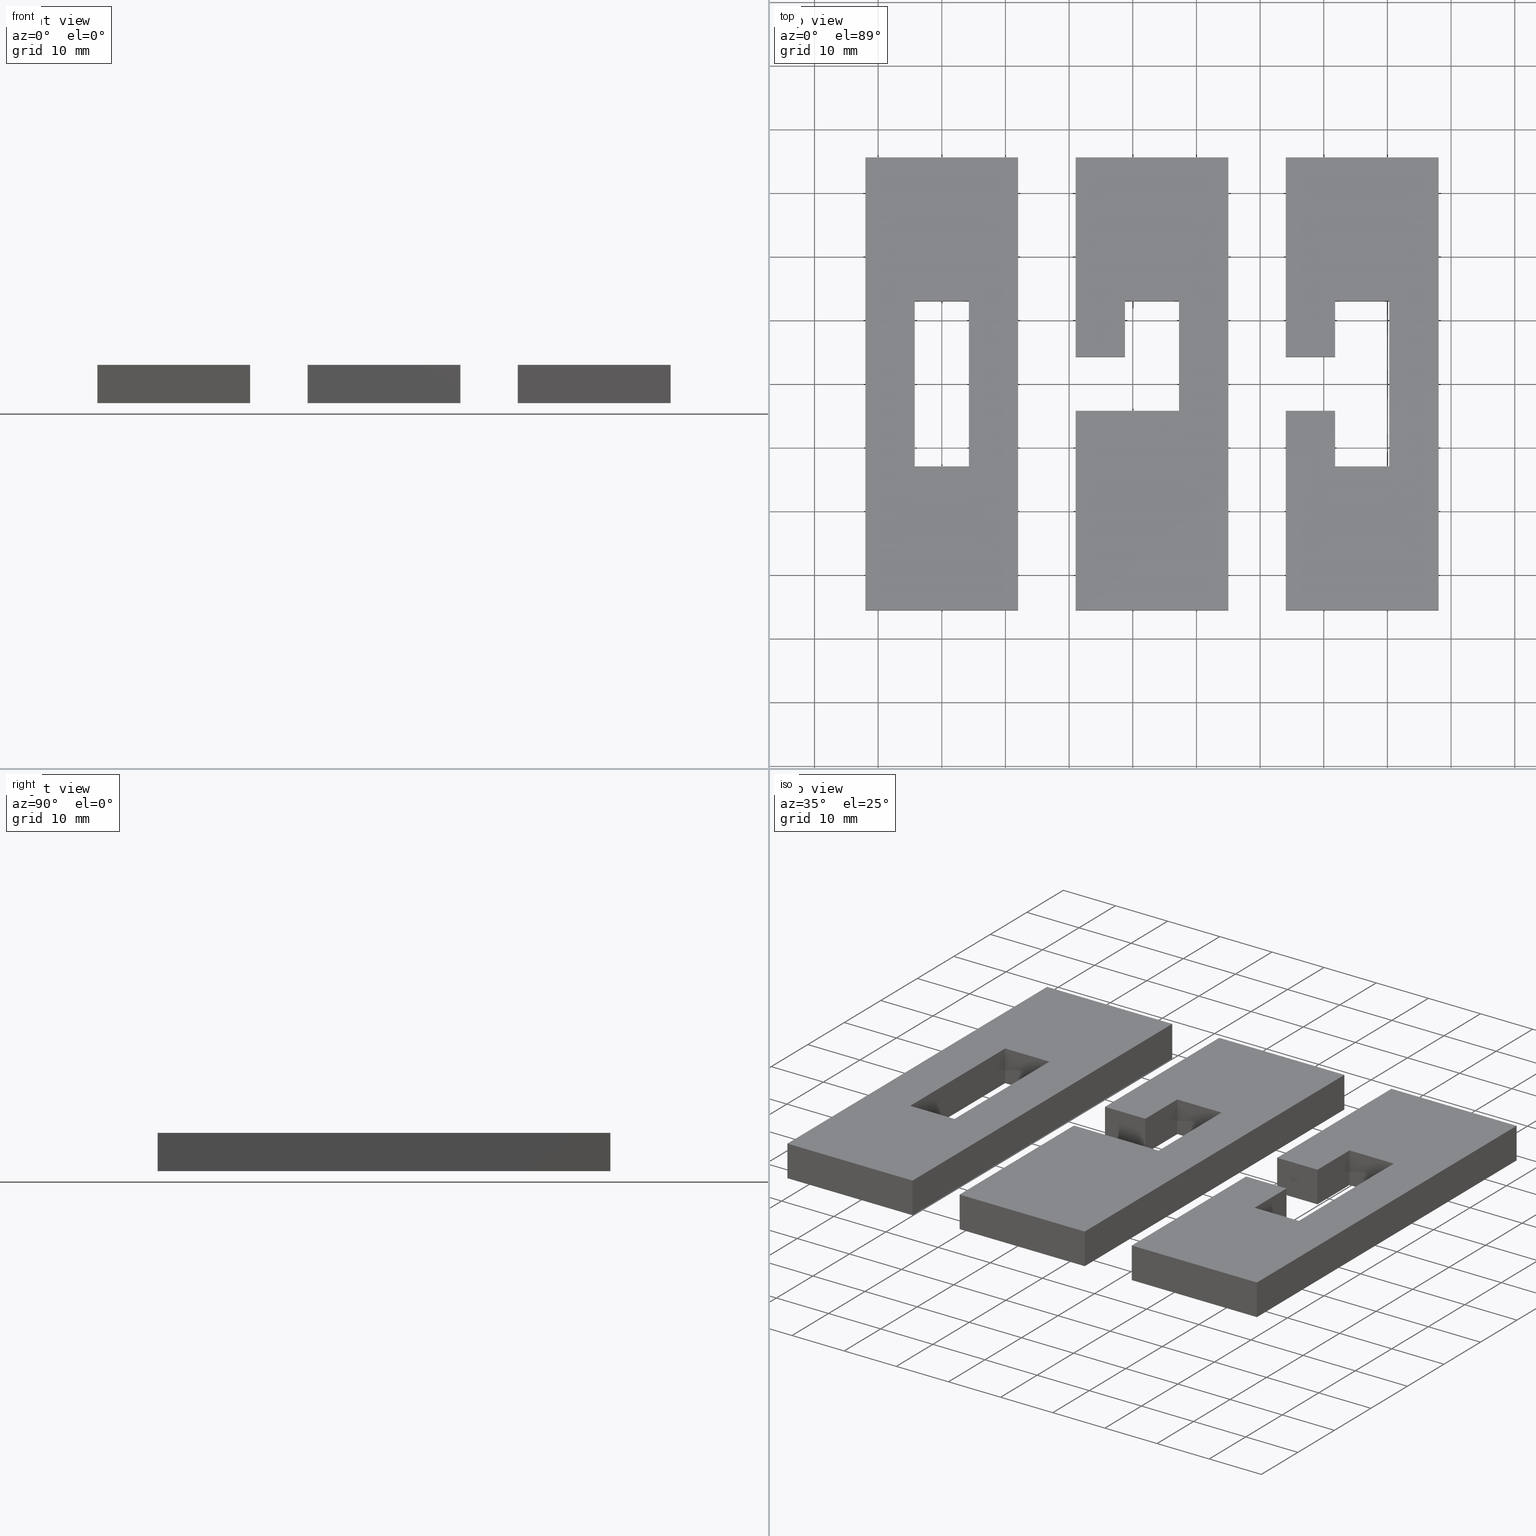
[diagram: canonical four-view strip — front | top / right | iso, engineering-drawing reading convention]
A machine part, canonical four-view strip (front | top / right | iso — engineering-drawing reading convention). The complete STEP part file that produces these views, byte-faithful:
ISO-10303-21;
HEADER;
/* Generated by software containing ST-Developer
 * from STEP Tools, Inc. (www.steptools.com) 
 */
/* OPTION: using custom renumber hook */

FILE_DESCRIPTION(
/* description */ ('STEP AP242',
'CAx-IF Rec.Pracs.---Representation and Presentation of Product Manufa
cturing Information (PMI)---4.0---2014-10-13',
'CAx-IF Rec.Pracs.---3D Tessellated Geometry---0.4---2014-09-14','2;1'),

/* implementation_level */ '2;1');

FILE_NAME(
/* name */ '6606a82485df6b6f88061250',
/* time_stamp */ '2024-03-29T11:38:12Z',
/* author */ (''),
/* organization */ (''),
/* preprocessor_version */ 'ST-DEVELOPER v19.4',
/* originating_system */ '  ',
/* authorisation */ '  ');

FILE_SCHEMA (('AP242_MANAGED_MODEL_BASED_3D_ENGINEERING_MIM_LF { 1 0 10303 442 1 1 4 }'));
ENDSEC;

DATA;
#10=SHAPE_REPRESENTATION_RELATIONSHIP('','',#705,#13);
#11=SHAPE_REPRESENTATION_RELATIONSHIP('','',#706,#14);
#12=SHAPE_REPRESENTATION_RELATIONSHIP('','',#707,#15);
#13=ADVANCED_BREP_SHAPE_REPRESENTATION('',(#699),#1107);
#14=ADVANCED_BREP_SHAPE_REPRESENTATION('',(#700),#1108);
#15=ADVANCED_BREP_SHAPE_REPRESENTATION('',(#701),#1109);
#16=ORIENTED_EDGE('',*,*,#196,.F.);
#17=ORIENTED_EDGE('',*,*,#197,.T.);
#18=ORIENTED_EDGE('',*,*,#198,.F.);
#19=ORIENTED_EDGE('',*,*,#199,.F.);
#20=ORIENTED_EDGE('',*,*,#200,.F.);
#21=ORIENTED_EDGE('',*,*,#201,.T.);
#22=ORIENTED_EDGE('',*,*,#199,.T.);
#23=ORIENTED_EDGE('',*,*,#202,.F.);
#24=ORIENTED_EDGE('',*,*,#203,.F.);
#25=ORIENTED_EDGE('',*,*,#204,.T.);
#26=ORIENTED_EDGE('',*,*,#205,.T.);
#27=ORIENTED_EDGE('',*,*,#206,.F.);
#28=ORIENTED_EDGE('',*,*,#207,.F.);
#29=ORIENTED_EDGE('',*,*,#208,.F.);
#30=ORIENTED_EDGE('',*,*,#209,.T.);
#31=ORIENTED_EDGE('',*,*,#210,.T.);
#32=ORIENTED_EDGE('',*,*,#211,.F.);
#33=ORIENTED_EDGE('',*,*,#212,.T.);
#34=ORIENTED_EDGE('',*,*,#213,.F.);
#35=ORIENTED_EDGE('',*,*,#214,.F.);
#36=ORIENTED_EDGE('',*,*,#215,.T.);
#37=ORIENTED_EDGE('',*,*,#216,.T.);
#38=ORIENTED_EDGE('',*,*,#217,.T.);
#39=ORIENTED_EDGE('',*,*,#218,.F.);
#40=ORIENTED_EDGE('',*,*,#219,.F.);
#41=ORIENTED_EDGE('',*,*,#220,.T.);
#42=ORIENTED_EDGE('',*,*,#221,.T.);
#43=ORIENTED_EDGE('',*,*,#197,.F.);
#44=ORIENTED_EDGE('',*,*,#220,.F.);
#45=ORIENTED_EDGE('',*,*,#222,.F.);
#46=ORIENTED_EDGE('',*,*,#203,.T.);
#47=ORIENTED_EDGE('',*,*,#223,.T.);
#48=ORIENTED_EDGE('',*,*,#219,.T.);
#49=ORIENTED_EDGE('',*,*,#224,.F.);
#50=ORIENTED_EDGE('',*,*,#204,.F.);
#51=ORIENTED_EDGE('',*,*,#222,.T.);
#52=ORIENTED_EDGE('',*,*,#218,.T.);
#53=ORIENTED_EDGE('',*,*,#225,.T.);
#54=ORIENTED_EDGE('',*,*,#205,.F.);
#55=ORIENTED_EDGE('',*,*,#224,.T.);
#56=ORIENTED_EDGE('',*,*,#221,.F.);
#57=ORIENTED_EDGE('',*,*,#223,.F.);
#58=ORIENTED_EDGE('',*,*,#202,.T.);
#59=ORIENTED_EDGE('',*,*,#198,.T.);
#60=ORIENTED_EDGE('',*,*,#196,.T.);
#61=ORIENTED_EDGE('',*,*,#201,.F.);
#62=ORIENTED_EDGE('',*,*,#226,.F.);
#63=ORIENTED_EDGE('',*,*,#211,.T.);
#64=ORIENTED_EDGE('',*,*,#226,.T.);
#65=ORIENTED_EDGE('',*,*,#200,.T.);
#66=ORIENTED_EDGE('',*,*,#227,.F.);
#67=ORIENTED_EDGE('',*,*,#212,.F.);
#68=ORIENTED_EDGE('',*,*,#213,.T.);
#69=ORIENTED_EDGE('',*,*,#227,.T.);
#70=ORIENTED_EDGE('',*,*,#210,.F.);
#71=ORIENTED_EDGE('',*,*,#228,.F.);
#72=ORIENTED_EDGE('',*,*,#214,.T.);
#73=ORIENTED_EDGE('',*,*,#228,.T.);
#74=ORIENTED_EDGE('',*,*,#209,.F.);
#75=ORIENTED_EDGE('',*,*,#229,.F.);
#76=ORIENTED_EDGE('',*,*,#229,.T.);
#77=ORIENTED_EDGE('',*,*,#208,.T.);
#78=ORIENTED_EDGE('',*,*,#230,.F.);
#79=ORIENTED_EDGE('',*,*,#215,.F.);
#80=ORIENTED_EDGE('',*,*,#230,.T.);
#81=ORIENTED_EDGE('',*,*,#207,.T.);
#82=ORIENTED_EDGE('',*,*,#231,.F.);
#83=ORIENTED_EDGE('',*,*,#216,.F.);
#84=ORIENTED_EDGE('',*,*,#217,.F.);
#85=ORIENTED_EDGE('',*,*,#231,.T.);
#86=ORIENTED_EDGE('',*,*,#206,.T.);
#87=ORIENTED_EDGE('',*,*,#225,.F.);
#88=ORIENTED_EDGE('',*,*,#232,.F.);
#89=ORIENTED_EDGE('',*,*,#233,.T.);
#90=ORIENTED_EDGE('',*,*,#234,.F.);
#91=ORIENTED_EDGE('',*,*,#235,.F.);
#92=ORIENTED_EDGE('',*,*,#236,.T.);
#93=ORIENTED_EDGE('',*,*,#237,.T.);
#94=ORIENTED_EDGE('',*,*,#235,.T.);
#95=ORIENTED_EDGE('',*,*,#238,.F.);
#96=ORIENTED_EDGE('',*,*,#239,.F.);
#97=ORIENTED_EDGE('',*,*,#240,.T.);
#98=ORIENTED_EDGE('',*,*,#241,.T.);
#99=ORIENTED_EDGE('',*,*,#242,.F.);
#100=ORIENTED_EDGE('',*,*,#243,.F.);
#101=ORIENTED_EDGE('',*,*,#244,.F.);
#102=ORIENTED_EDGE('',*,*,#245,.F.);
#103=ORIENTED_EDGE('',*,*,#246,.F.);
#104=ORIENTED_EDGE('',*,*,#247,.T.);
#105=ORIENTED_EDGE('',*,*,#248,.T.);
#106=ORIENTED_EDGE('',*,*,#249,.T.);
#107=ORIENTED_EDGE('',*,*,#250,.F.);
#108=ORIENTED_EDGE('',*,*,#251,.F.);
#109=ORIENTED_EDGE('',*,*,#252,.T.);
#110=ORIENTED_EDGE('',*,*,#253,.T.);
#111=ORIENTED_EDGE('',*,*,#233,.F.);
#112=ORIENTED_EDGE('',*,*,#252,.F.);
#113=ORIENTED_EDGE('',*,*,#254,.F.);
#114=ORIENTED_EDGE('',*,*,#239,.T.);
#115=ORIENTED_EDGE('',*,*,#255,.T.);
#116=ORIENTED_EDGE('',*,*,#251,.T.);
#117=ORIENTED_EDGE('',*,*,#256,.F.);
#118=ORIENTED_EDGE('',*,*,#240,.F.);
#119=ORIENTED_EDGE('',*,*,#254,.T.);
#120=ORIENTED_EDGE('',*,*,#250,.T.);
#121=ORIENTED_EDGE('',*,*,#257,.T.);
#122=ORIENTED_EDGE('',*,*,#241,.F.);
#123=ORIENTED_EDGE('',*,*,#256,.T.);
#124=ORIENTED_EDGE('',*,*,#253,.F.);
#125=ORIENTED_EDGE('',*,*,#255,.F.);
#126=ORIENTED_EDGE('',*,*,#238,.T.);
#127=ORIENTED_EDGE('',*,*,#234,.T.);
#128=ORIENTED_EDGE('',*,*,#232,.T.);
#129=ORIENTED_EDGE('',*,*,#237,.F.);
#130=ORIENTED_EDGE('',*,*,#258,.F.);
#131=ORIENTED_EDGE('',*,*,#245,.T.);
#132=ORIENTED_EDGE('',*,*,#246,.T.);
#133=ORIENTED_EDGE('',*,*,#258,.T.);
#134=ORIENTED_EDGE('',*,*,#236,.F.);
#135=ORIENTED_EDGE('',*,*,#259,.F.);
#136=ORIENTED_EDGE('',*,*,#259,.T.);
#137=ORIENTED_EDGE('',*,*,#244,.T.);
#138=ORIENTED_EDGE('',*,*,#260,.F.);
#139=ORIENTED_EDGE('',*,*,#247,.F.);
#140=ORIENTED_EDGE('',*,*,#260,.T.);
#141=ORIENTED_EDGE('',*,*,#243,.T.);
#142=ORIENTED_EDGE('',*,*,#261,.F.);
#143=ORIENTED_EDGE('',*,*,#248,.F.);
#144=ORIENTED_EDGE('',*,*,#249,.F.);
#145=ORIENTED_EDGE('',*,*,#261,.T.);
#146=ORIENTED_EDGE('',*,*,#242,.T.);
#147=ORIENTED_EDGE('',*,*,#257,.F.);
#148=ORIENTED_EDGE('',*,*,#262,.F.);
#149=ORIENTED_EDGE('',*,*,#263,.T.);
#150=ORIENTED_EDGE('',*,*,#264,.T.);
#151=ORIENTED_EDGE('',*,*,#265,.F.);
#152=ORIENTED_EDGE('',*,*,#266,.F.);
#153=ORIENTED_EDGE('',*,*,#267,.T.);
#154=ORIENTED_EDGE('',*,*,#268,.T.);
#155=ORIENTED_EDGE('',*,*,#269,.F.);
#156=ORIENTED_EDGE('',*,*,#270,.T.);
#157=ORIENTED_EDGE('',*,*,#271,.T.);
#158=ORIENTED_EDGE('',*,*,#272,.F.);
#159=ORIENTED_EDGE('',*,*,#273,.F.);
#160=ORIENTED_EDGE('',*,*,#274,.F.);
#161=ORIENTED_EDGE('',*,*,#275,.T.);
#162=ORIENTED_EDGE('',*,*,#276,.T.);
#163=ORIENTED_EDGE('',*,*,#277,.F.);
#164=ORIENTED_EDGE('',*,*,#270,.F.);
#165=ORIENTED_EDGE('',*,*,#278,.F.);
#166=ORIENTED_EDGE('',*,*,#262,.T.);
#167=ORIENTED_EDGE('',*,*,#279,.T.);
#168=ORIENTED_EDGE('',*,*,#273,.T.);
#169=ORIENTED_EDGE('',*,*,#280,.F.);
#170=ORIENTED_EDGE('',*,*,#263,.F.);
#171=ORIENTED_EDGE('',*,*,#278,.T.);
#172=ORIENTED_EDGE('',*,*,#272,.T.);
#173=ORIENTED_EDGE('',*,*,#281,.F.);
#174=ORIENTED_EDGE('',*,*,#264,.F.);
#175=ORIENTED_EDGE('',*,*,#280,.T.);
#176=ORIENTED_EDGE('',*,*,#271,.F.);
#177=ORIENTED_EDGE('',*,*,#279,.F.);
#178=ORIENTED_EDGE('',*,*,#265,.T.);
#179=ORIENTED_EDGE('',*,*,#281,.T.);
#180=ORIENTED_EDGE('',*,*,#274,.T.);
#181=ORIENTED_EDGE('',*,*,#282,.T.);
#182=ORIENTED_EDGE('',*,*,#267,.F.);
#183=ORIENTED_EDGE('',*,*,#283,.F.);
#184=ORIENTED_EDGE('',*,*,#283,.T.);
#185=ORIENTED_EDGE('',*,*,#266,.T.);
#186=ORIENTED_EDGE('',*,*,#284,.F.);
#187=ORIENTED_EDGE('',*,*,#275,.F.);
#188=ORIENTED_EDGE('',*,*,#284,.T.);
#189=ORIENTED_EDGE('',*,*,#269,.T.);
#190=ORIENTED_EDGE('',*,*,#285,.F.);
#191=ORIENTED_EDGE('',*,*,#276,.F.);
#192=ORIENTED_EDGE('',*,*,#277,.T.);
#193=ORIENTED_EDGE('',*,*,#285,.T.);
#194=ORIENTED_EDGE('',*,*,#268,.F.);
#195=ORIENTED_EDGE('',*,*,#282,.F.);
#196=EDGE_CURVE('',#286,#287,#346,.T.);
#197=EDGE_CURVE('',#286,#288,#347,.T.);
#198=EDGE_CURVE('',#289,#288,#348,.T.);
#199=EDGE_CURVE('',#287,#289,#349,.T.);
#200=EDGE_CURVE('',#290,#291,#350,.T.);
#201=EDGE_CURVE('',#290,#287,#351,.T.);
#202=EDGE_CURVE('',#292,#289,#352,.T.);
#203=EDGE_CURVE('',#293,#292,#353,.T.);
#204=EDGE_CURVE('',#293,#294,#354,.T.);
#205=EDGE_CURVE('',#294,#295,#355,.T.);
#206=EDGE_CURVE('',#296,#295,#356,.T.);
#207=EDGE_CURVE('',#297,#296,#357,.T.);
#208=EDGE_CURVE('',#298,#297,#358,.T.);
#209=EDGE_CURVE('',#298,#299,#359,.T.);
#210=EDGE_CURVE('',#299,#291,#360,.T.);
#211=EDGE_CURVE('',#300,#286,#361,.T.);
#212=EDGE_CURVE('',#300,#301,#362,.T.);
#213=EDGE_CURVE('',#302,#301,#363,.T.);
#214=EDGE_CURVE('',#303,#302,#364,.T.);
#215=EDGE_CURVE('',#303,#304,#365,.T.);
#216=EDGE_CURVE('',#304,#305,#366,.T.);
#217=EDGE_CURVE('',#305,#306,#367,.T.);
#218=EDGE_CURVE('',#307,#306,#368,.T.);
#219=EDGE_CURVE('',#308,#307,#369,.T.);
#220=EDGE_CURVE('',#308,#309,#370,.T.);
#221=EDGE_CURVE('',#309,#288,#371,.T.);
#222=EDGE_CURVE('',#293,#308,#372,.T.);
#223=EDGE_CURVE('',#292,#309,#373,.T.);
#224=EDGE_CURVE('',#294,#307,#374,.T.);
#225=EDGE_CURVE('',#306,#295,#375,.T.);
#226=EDGE_CURVE('',#300,#290,#376,.T.);
#227=EDGE_CURVE('',#301,#291,#377,.T.);
#228=EDGE_CURVE('',#302,#299,#378,.T.);
#229=EDGE_CURVE('',#303,#298,#379,.T.);
#230=EDGE_CURVE('',#304,#297,#380,.T.);
#231=EDGE_CURVE('',#305,#296,#381,.T.);
#232=EDGE_CURVE('',#310,#311,#382,.T.);
#233=EDGE_CURVE('',#310,#312,#383,.T.);
#234=EDGE_CURVE('',#313,#312,#384,.T.);
#235=EDGE_CURVE('',#311,#313,#385,.T.);
#236=EDGE_CURVE('',#314,#315,#386,.T.);
#237=EDGE_CURVE('',#315,#311,#387,.T.);
#238=EDGE_CURVE('',#316,#313,#388,.T.);
#239=EDGE_CURVE('',#317,#316,#389,.T.);
#240=EDGE_CURVE('',#317,#318,#390,.T.);
#241=EDGE_CURVE('',#318,#319,#391,.T.);
#242=EDGE_CURVE('',#320,#319,#392,.T.);
#243=EDGE_CURVE('',#321,#320,#393,.T.);
#244=EDGE_CURVE('',#314,#321,#394,.T.);
#245=EDGE_CURVE('',#322,#310,#395,.T.);
#246=EDGE_CURVE('',#323,#322,#396,.T.);
#247=EDGE_CURVE('',#323,#324,#397,.T.);
#248=EDGE_CURVE('',#324,#325,#398,.T.);
#249=EDGE_CURVE('',#325,#326,#399,.T.);
#250=EDGE_CURVE('',#327,#326,#400,.T.);
#251=EDGE_CURVE('',#328,#327,#401,.T.);
#252=EDGE_CURVE('',#328,#329,#402,.T.);
#253=EDGE_CURVE('',#329,#312,#403,.T.);
#254=EDGE_CURVE('',#317,#328,#404,.T.);
#255=EDGE_CURVE('',#316,#329,#405,.T.);
#256=EDGE_CURVE('',#318,#327,#406,.T.);
#257=EDGE_CURVE('',#326,#319,#407,.T.);
#258=EDGE_CURVE('',#322,#315,#408,.T.);
#259=EDGE_CURVE('',#323,#314,#409,.T.);
#260=EDGE_CURVE('',#324,#321,#410,.T.);
#261=EDGE_CURVE('',#325,#320,#411,.T.);
#262=EDGE_CURVE('',#330,#331,#412,.T.);
#263=EDGE_CURVE('',#330,#332,#413,.T.);
#264=EDGE_CURVE('',#332,#333,#414,.T.);
#265=EDGE_CURVE('',#331,#333,#415,.T.);
#266=EDGE_CURVE('',#334,#335,#416,.T.);
#267=EDGE_CURVE('',#334,#336,#417,.T.);
#268=EDGE_CURVE('',#336,#337,#418,.T.);
#269=EDGE_CURVE('',#335,#337,#419,.T.);
#270=EDGE_CURVE('',#338,#339,#420,.T.);
#271=EDGE_CURVE('',#339,#340,#421,.T.);
#272=EDGE_CURVE('',#341,#340,#422,.T.);
#273=EDGE_CURVE('',#338,#341,#423,.T.);
#274=EDGE_CURVE('',#342,#343,#424,.T.);
#275=EDGE_CURVE('',#342,#344,#425,.T.);
#276=EDGE_CURVE('',#344,#345,#426,.T.);
#277=EDGE_CURVE('',#343,#345,#427,.T.);
#278=EDGE_CURVE('',#330,#338,#428,.T.);
#279=EDGE_CURVE('',#331,#339,#429,.T.);
#280=EDGE_CURVE('',#332,#341,#430,.T.);
#281=EDGE_CURVE('',#333,#340,#431,.T.);
#282=EDGE_CURVE('',#343,#336,#432,.T.);
#283=EDGE_CURVE('',#342,#334,#433,.T.);
#284=EDGE_CURVE('',#344,#335,#434,.T.);
#285=EDGE_CURVE('',#345,#337,#435,.T.);
#286=VERTEX_POINT('',#918);
#287=VERTEX_POINT('',#919);
#288=VERTEX_POINT('',#921);
#289=VERTEX_POINT('',#923);
#290=VERTEX_POINT('',#927);
#291=VERTEX_POINT('',#928);
#292=VERTEX_POINT('',#931);
#293=VERTEX_POINT('',#933);
#294=VERTEX_POINT('',#935);
#295=VERTEX_POINT('',#937);
#296=VERTEX_POINT('',#939);
#297=VERTEX_POINT('',#941);
#298=VERTEX_POINT('',#943);
#299=VERTEX_POINT('',#945);
#300=VERTEX_POINT('',#949);
#301=VERTEX_POINT('',#951);
#302=VERTEX_POINT('',#953);
#303=VERTEX_POINT('',#955);
#304=VERTEX_POINT('',#957);
#305=VERTEX_POINT('',#959);
#306=VERTEX_POINT('',#961);
#307=VERTEX_POINT('',#963);
#308=VERTEX_POINT('',#965);
#309=VERTEX_POINT('',#967);
#310=VERTEX_POINT('',#993);
#311=VERTEX_POINT('',#994);
#312=VERTEX_POINT('',#996);
#313=VERTEX_POINT('',#998);
#314=VERTEX_POINT('',#1002);
#315=VERTEX_POINT('',#1003);
#316=VERTEX_POINT('',#1006);
#317=VERTEX_POINT('',#1008);
#318=VERTEX_POINT('',#1010);
#319=VERTEX_POINT('',#1012);
#320=VERTEX_POINT('',#1014);
#321=VERTEX_POINT('',#1016);
#322=VERTEX_POINT('',#1020);
#323=VERTEX_POINT('',#1022);
#324=VERTEX_POINT('',#1024);
#325=VERTEX_POINT('',#1026);
#326=VERTEX_POINT('',#1028);
#327=VERTEX_POINT('',#1030);
#328=VERTEX_POINT('',#1032);
#329=VERTEX_POINT('',#1034);
#330=VERTEX_POINT('',#1056);
#331=VERTEX_POINT('',#1057);
#332=VERTEX_POINT('',#1059);
#333=VERTEX_POINT('',#1061);
#334=VERTEX_POINT('',#1064);
#335=VERTEX_POINT('',#1065);
#336=VERTEX_POINT('',#1067);
#337=VERTEX_POINT('',#1069);
#338=VERTEX_POINT('',#1073);
#339=VERTEX_POINT('',#1074);
#340=VERTEX_POINT('',#1076);
#341=VERTEX_POINT('',#1078);
#342=VERTEX_POINT('',#1081);
#343=VERTEX_POINT('',#1082);
#344=VERTEX_POINT('',#1084);
#345=VERTEX_POINT('',#1086);
#346=LINE('',#917,#436);
#347=LINE('',#920,#437);
#348=LINE('',#922,#438);
#349=LINE('',#924,#439);
#350=LINE('',#926,#440);
#351=LINE('',#929,#441);
#352=LINE('',#930,#442);
#353=LINE('',#932,#443);
#354=LINE('',#934,#444);
#355=LINE('',#936,#445);
#356=LINE('',#938,#446);
#357=LINE('',#940,#447);
#358=LINE('',#942,#448);
#359=LINE('',#944,#449);
#360=LINE('',#946,#450);
#361=LINE('',#948,#451);
#362=LINE('',#950,#452);
#363=LINE('',#952,#453);
#364=LINE('',#954,#454);
#365=LINE('',#956,#455);
#366=LINE('',#958,#456);
#367=LINE('',#960,#457);
#368=LINE('',#962,#458);
#369=LINE('',#964,#459);
#370=LINE('',#966,#460);
#371=LINE('',#968,#461);
#372=LINE('',#970,#462);
#373=LINE('',#971,#463);
#374=LINE('',#973,#464);
#375=LINE('',#975,#465);
#376=LINE('',#978,#466);
#377=LINE('',#980,#467);
#378=LINE('',#982,#468);
#379=LINE('',#984,#469);
#380=LINE('',#986,#470);
#381=LINE('',#988,#471);
#382=LINE('',#992,#472);
#383=LINE('',#995,#473);
#384=LINE('',#997,#474);
#385=LINE('',#999,#475);
#386=LINE('',#1001,#476);
#387=LINE('',#1004,#477);
#388=LINE('',#1005,#478);
#389=LINE('',#1007,#479);
#390=LINE('',#1009,#480);
#391=LINE('',#1011,#481);
#392=LINE('',#1013,#482);
#393=LINE('',#1015,#483);
#394=LINE('',#1017,#484);
#395=LINE('',#1019,#485);
#396=LINE('',#1021,#486);
#397=LINE('',#1023,#487);
#398=LINE('',#1025,#488);
#399=LINE('',#1027,#489);
#400=LINE('',#1029,#490);
#401=LINE('',#1031,#491);
#402=LINE('',#1033,#492);
#403=LINE('',#1035,#493);
#404=LINE('',#1037,#494);
#405=LINE('',#1038,#495);
#406=LINE('',#1040,#496);
#407=LINE('',#1042,#497);
#408=LINE('',#1045,#498);
#409=LINE('',#1047,#499);
#410=LINE('',#1049,#500);
#411=LINE('',#1051,#501);
#412=LINE('',#1055,#502);
#413=LINE('',#1058,#503);
#414=LINE('',#1060,#504);
#415=LINE('',#1062,#505);
#416=LINE('',#1063,#506);
#417=LINE('',#1066,#507);
#418=LINE('',#1068,#508);
#419=LINE('',#1070,#509);
#420=LINE('',#1072,#510);
#421=LINE('',#1075,#511);
#422=LINE('',#1077,#512);
#423=LINE('',#1079,#513);
#424=LINE('',#1080,#514);
#425=LINE('',#1083,#515);
#426=LINE('',#1085,#516);
#427=LINE('',#1087,#517);
#428=LINE('',#1089,#518);
#429=LINE('',#1090,#519);
#430=LINE('',#1092,#520);
#431=LINE('',#1094,#521);
#432=LINE('',#1097,#522);
#433=LINE('',#1098,#523);
#434=LINE('',#1100,#524);
#435=LINE('',#1102,#525);
#436=VECTOR('',#751,1.);
#437=VECTOR('',#752,1.);
#438=VECTOR('',#753,1.);
#439=VECTOR('',#754,1.);
#440=VECTOR('',#757,1.);
#441=VECTOR('',#758,1.);
#442=VECTOR('',#759,1.);
#443=VECTOR('',#760,1.);
#444=VECTOR('',#761,1.);
#445=VECTOR('',#762,1.);
#446=VECTOR('',#763,1.);
#447=VECTOR('',#764,1.);
#448=VECTOR('',#765,1.);
#449=VECTOR('',#766,1.);
#450=VECTOR('',#767,1.);
#451=VECTOR('',#770,1.);
#452=VECTOR('',#771,1.);
#453=VECTOR('',#772,1.);
#454=VECTOR('',#773,1.);
#455=VECTOR('',#774,1.);
#456=VECTOR('',#775,1.);
#457=VECTOR('',#776,1.);
#458=VECTOR('',#777,1.);
#459=VECTOR('',#778,1.);
#460=VECTOR('',#779,1.);
#461=VECTOR('',#780,1.);
#462=VECTOR('',#783,1.);
#463=VECTOR('',#784,1.);
#464=VECTOR('',#787,1.);
#465=VECTOR('',#790,1.);
#466=VECTOR('',#795,1.);
#467=VECTOR('',#798,1.);
#468=VECTOR('',#801,1.);
#469=VECTOR('',#804,1.);
#470=VECTOR('',#807,1.);
#471=VECTOR('',#810,1.);
#472=VECTOR('',#817,1.);
#473=VECTOR('',#818,1.);
#474=VECTOR('',#819,1.);
#475=VECTOR('',#820,1.);
#476=VECTOR('',#823,1.);
#477=VECTOR('',#824,1.);
#478=VECTOR('',#825,1.);
#479=VECTOR('',#826,1.);
#480=VECTOR('',#827,1.);
#481=VECTOR('',#828,1.);
#482=VECTOR('',#829,1.);
#483=VECTOR('',#830,1.);
#484=VECTOR('',#831,1.);
#485=VECTOR('',#834,1.);
#486=VECTOR('',#835,1.);
#487=VECTOR('',#836,1.);
#488=VECTOR('',#837,1.);
#489=VECTOR('',#838,1.);
#490=VECTOR('',#839,1.);
#491=VECTOR('',#840,1.);
#492=VECTOR('',#841,1.);
#493=VECTOR('',#842,1.);
#494=VECTOR('',#845,1.);
#495=VECTOR('',#846,1.);
#496=VECTOR('',#849,1.);
#497=VECTOR('',#852,1.);
#498=VECTOR('',#857,1.);
#499=VECTOR('',#860,1.);
#500=VECTOR('',#863,1.);
#501=VECTOR('',#866,1.);
#502=VECTOR('',#873,1.);
#503=VECTOR('',#874,1.);
#504=VECTOR('',#875,1.);
#505=VECTOR('',#876,1.);
#506=VECTOR('',#877,1.);
#507=VECTOR('',#878,1.);
#508=VECTOR('',#879,1.);
#509=VECTOR('',#880,1.);
#510=VECTOR('',#883,1.);
#511=VECTOR('',#884,1.);
#512=VECTOR('',#885,1.);
#513=VECTOR('',#886,1.);
#514=VECTOR('',#887,1.);
#515=VECTOR('',#888,1.);
#516=VECTOR('',#889,1.);
#517=VECTOR('',#890,1.);
#518=VECTOR('',#893,1.);
#519=VECTOR('',#894,1.);
#520=VECTOR('',#897,1.);
#521=VECTOR('',#900,1.);
#522=VECTOR('',#905,1.);
#523=VECTOR('',#906,1.);
#524=VECTOR('',#909,1.);
#525=VECTOR('',#912,1.);
#526=EDGE_LOOP('',(#16,#17,#18,#19));
#527=EDGE_LOOP('',(#20,#21,#22,#23,#24,#25,#26,#27,#28,#29,#30,#31));
#528=EDGE_LOOP('',(#32,#33,#34,#35,#36,#37,#38,#39,#40,#41,#42,#43));
#529=EDGE_LOOP('',(#44,#45,#46,#47));
#530=EDGE_LOOP('',(#48,#49,#50,#51));
#531=EDGE_LOOP('',(#52,#53,#54,#55));
#532=EDGE_LOOP('',(#56,#57,#58,#59));
#533=EDGE_LOOP('',(#60,#61,#62,#63));
#534=EDGE_LOOP('',(#64,#65,#66,#67));
#535=EDGE_LOOP('',(#68,#69,#70,#71));
#536=EDGE_LOOP('',(#72,#73,#74,#75));
#537=EDGE_LOOP('',(#76,#77,#78,#79));
#538=EDGE_LOOP('',(#80,#81,#82,#83));
#539=EDGE_LOOP('',(#84,#85,#86,#87));
#540=EDGE_LOOP('',(#88,#89,#90,#91));
#541=EDGE_LOOP('',(#92,#93,#94,#95,#96,#97,#98,#99,#100,#101));
#542=EDGE_LOOP('',(#102,#103,#104,#105,#106,#107,#108,#109,#110,#111));
#543=EDGE_LOOP('',(#112,#113,#114,#115));
#544=EDGE_LOOP('',(#116,#117,#118,#119));
#545=EDGE_LOOP('',(#120,#121,#122,#123));
#546=EDGE_LOOP('',(#124,#125,#126,#127));
#547=EDGE_LOOP('',(#128,#129,#130,#131));
#548=EDGE_LOOP('',(#132,#133,#134,#135));
#549=EDGE_LOOP('',(#136,#137,#138,#139));
#550=EDGE_LOOP('',(#140,#141,#142,#143));
#551=EDGE_LOOP('',(#144,#145,#146,#147));
#552=EDGE_LOOP('',(#148,#149,#150,#151));
#553=EDGE_LOOP('',(#152,#153,#154,#155));
#554=EDGE_LOOP('',(#156,#157,#158,#159));
#555=EDGE_LOOP('',(#160,#161,#162,#163));
#556=EDGE_LOOP('',(#164,#165,#166,#167));
#557=EDGE_LOOP('',(#168,#169,#170,#171));
#558=EDGE_LOOP('',(#172,#173,#174,#175));
#559=EDGE_LOOP('',(#176,#177,#178,#179));
#560=EDGE_LOOP('',(#180,#181,#182,#183));
#561=EDGE_LOOP('',(#184,#185,#186,#187));
#562=EDGE_LOOP('',(#188,#189,#190,#191));
#563=EDGE_LOOP('',(#192,#193,#194,#195));
#564=FACE_BOUND('',#526,.T.);
#565=FACE_BOUND('',#527,.T.);
#566=FACE_BOUND('',#528,.T.);
#567=FACE_BOUND('',#529,.T.);
#568=FACE_BOUND('',#530,.T.);
#569=FACE_BOUND('',#531,.T.);
#570=FACE_BOUND('',#532,.T.);
#571=FACE_BOUND('',#533,.T.);
#572=FACE_BOUND('',#534,.T.);
#573=FACE_BOUND('',#535,.T.);
#574=FACE_BOUND('',#536,.T.);
#575=FACE_BOUND('',#537,.T.);
#576=FACE_BOUND('',#538,.T.);
#577=FACE_BOUND('',#539,.T.);
#578=FACE_BOUND('',#540,.T.);
#579=FACE_BOUND('',#541,.T.);
#580=FACE_BOUND('',#542,.T.);
#581=FACE_BOUND('',#543,.T.);
#582=FACE_BOUND('',#544,.T.);
#583=FACE_BOUND('',#545,.T.);
#584=FACE_BOUND('',#546,.T.);
#585=FACE_BOUND('',#547,.T.);
#586=FACE_BOUND('',#548,.T.);
#587=FACE_BOUND('',#549,.T.);
#588=FACE_BOUND('',#550,.T.);
#589=FACE_BOUND('',#551,.T.);
#590=FACE_BOUND('',#552,.T.);
#591=FACE_BOUND('',#553,.T.);
#592=FACE_BOUND('',#554,.T.);
#593=FACE_BOUND('',#555,.T.);
#594=FACE_BOUND('',#556,.T.);
#595=FACE_BOUND('',#557,.T.);
#596=FACE_BOUND('',#558,.T.);
#597=FACE_BOUND('',#559,.T.);
#598=FACE_BOUND('',#560,.T.);
#599=FACE_BOUND('',#561,.T.);
#600=FACE_BOUND('',#562,.T.);
#601=FACE_BOUND('',#563,.T.);
#602=PLANE('',#709);
#603=PLANE('',#710);
#604=PLANE('',#711);
#605=PLANE('',#712);
#606=PLANE('',#713);
#607=PLANE('',#714);
#608=PLANE('',#715);
#609=PLANE('',#716);
#610=PLANE('',#717);
#611=PLANE('',#718);
#612=PLANE('',#719);
#613=PLANE('',#720);
#614=PLANE('',#721);
#615=PLANE('',#722);
#616=PLANE('',#724);
#617=PLANE('',#725);
#618=PLANE('',#726);
#619=PLANE('',#727);
#620=PLANE('',#728);
#621=PLANE('',#729);
#622=PLANE('',#730);
#623=PLANE('',#731);
#624=PLANE('',#732);
#625=PLANE('',#733);
#626=PLANE('',#734);
#627=PLANE('',#735);
#628=PLANE('',#737);
#629=PLANE('',#738);
#630=PLANE('',#739);
#631=PLANE('',#740);
#632=PLANE('',#741);
#633=PLANE('',#742);
#634=PLANE('',#743);
#635=PLANE('',#744);
#636=PLANE('',#745);
#637=PLANE('',#746);
#638=ADVANCED_FACE('',(#564),#602,.F.);
#639=ADVANCED_FACE('',(#565),#603,.T.);
#640=ADVANCED_FACE('',(#566),#604,.F.);
#641=ADVANCED_FACE('',(#567),#605,.T.);
#642=ADVANCED_FACE('',(#568),#606,.F.);
#643=ADVANCED_FACE('',(#569),#607,.F.);
#644=ADVANCED_FACE('',(#570),#608,.T.);
#645=ADVANCED_FACE('',(#571),#609,.T.);
#646=ADVANCED_FACE('',(#572),#610,.F.);
#647=ADVANCED_FACE('',(#573),#611,.T.);
#648=ADVANCED_FACE('',(#574),#612,.T.);
#649=ADVANCED_FACE('',(#575),#613,.F.);
#650=ADVANCED_FACE('',(#576),#614,.F.);
#651=ADVANCED_FACE('',(#577),#615,.F.);
#652=ADVANCED_FACE('',(#578),#616,.F.);
#653=ADVANCED_FACE('',(#579),#617,.T.);
#654=ADVANCED_FACE('',(#580),#618,.F.);
#655=ADVANCED_FACE('',(#581),#619,.T.);
#656=ADVANCED_FACE('',(#582),#620,.F.);
#657=ADVANCED_FACE('',(#583),#621,.F.);
#658=ADVANCED_FACE('',(#584),#622,.T.);
#659=ADVANCED_FACE('',(#585),#623,.T.);
#660=ADVANCED_FACE('',(#586),#624,.T.);
#661=ADVANCED_FACE('',(#587),#625,.F.);
#662=ADVANCED_FACE('',(#588),#626,.F.);
#663=ADVANCED_FACE('',(#589),#627,.F.);
#664=ADVANCED_FACE('',(#590,#591),#628,.T.);
#665=ADVANCED_FACE('',(#592,#593),#629,.F.);
#666=ADVANCED_FACE('',(#594),#630,.T.);
#667=ADVANCED_FACE('',(#595),#631,.F.);
#668=ADVANCED_FACE('',(#596),#632,.F.);
#669=ADVANCED_FACE('',(#597),#633,.T.);
#670=ADVANCED_FACE('',(#598),#634,.T.);
#671=ADVANCED_FACE('',(#599),#635,.F.);
#672=ADVANCED_FACE('',(#600),#636,.F.);
#673=ADVANCED_FACE('',(#601),#637,.T.);
#674=CLOSED_SHELL('',(#638,#639,#640,#641,#642,#643,#644,#645,#646,#647,
#648,#649,#650,#651));
#675=CLOSED_SHELL('',(#652,#653,#654,#655,#656,#657,#658,#659,#660,#661,
#662,#663));
#676=CLOSED_SHELL('',(#664,#665,#666,#667,#668,#669,#670,#671,#672,#673));
#677=STYLED_ITEM('',(#680),#699);
#678=STYLED_ITEM('',(#681),#700);
#679=STYLED_ITEM('',(#682),#701);
#680=PRESENTATION_STYLE_ASSIGNMENT((#683));
#681=PRESENTATION_STYLE_ASSIGNMENT((#684));
#682=PRESENTATION_STYLE_ASSIGNMENT((#685));
#683=SURFACE_STYLE_USAGE(.BOTH.,#686);
#684=SURFACE_STYLE_USAGE(.BOTH.,#687);
#685=SURFACE_STYLE_USAGE(.BOTH.,#688);
#686=SURFACE_SIDE_STYLE('',(#689));
#687=SURFACE_SIDE_STYLE('',(#690));
#688=SURFACE_SIDE_STYLE('',(#691));
#689=SURFACE_STYLE_FILL_AREA(#692);
#690=SURFACE_STYLE_FILL_AREA(#693);
#691=SURFACE_STYLE_FILL_AREA(#694);
#692=FILL_AREA_STYLE('',(#695));
#693=FILL_AREA_STYLE('',(#696));
#694=FILL_AREA_STYLE('',(#697));
#695=FILL_AREA_STYLE_COLOUR('',#698);
#696=FILL_AREA_STYLE_COLOUR('',#698);
#697=FILL_AREA_STYLE_COLOUR('',#698);
#698=COLOUR_RGB('',0.647058823529412,0.647058823529412,0.647058823529412);
#699=MANIFOLD_SOLID_BREP('Part 3',#674);
#700=MANIFOLD_SOLID_BREP('Part 2',#675);
#701=MANIFOLD_SOLID_BREP('Part 1',#676);
#702=SHAPE_DEFINITION_REPRESENTATION(#1122,#705);
#703=SHAPE_DEFINITION_REPRESENTATION(#1123,#706);
#704=SHAPE_DEFINITION_REPRESENTATION(#1124,#707);
#705=SHAPE_REPRESENTATION('Part 3',(#708),#1107);
#706=SHAPE_REPRESENTATION('Part 2',(#723),#1108);
#707=SHAPE_REPRESENTATION('Part 1',(#736),#1109);
#708=AXIS2_PLACEMENT_3D('',#915,#747,#748);
#709=AXIS2_PLACEMENT_3D('',#916,#749,#750);
#710=AXIS2_PLACEMENT_3D('',#925,#755,#756);
#711=AXIS2_PLACEMENT_3D('',#947,#768,#769);
#712=AXIS2_PLACEMENT_3D('',#969,#781,#782);
#713=AXIS2_PLACEMENT_3D('',#972,#785,#786);
#714=AXIS2_PLACEMENT_3D('',#974,#788,#789);
#715=AXIS2_PLACEMENT_3D('',#976,#791,#792);
#716=AXIS2_PLACEMENT_3D('',#977,#793,#794);
#717=AXIS2_PLACEMENT_3D('',#979,#796,#797);
#718=AXIS2_PLACEMENT_3D('',#981,#799,#800);
#719=AXIS2_PLACEMENT_3D('',#983,#802,#803);
#720=AXIS2_PLACEMENT_3D('',#985,#805,#806);
#721=AXIS2_PLACEMENT_3D('',#987,#808,#809);
#722=AXIS2_PLACEMENT_3D('',#989,#811,#812);
#723=AXIS2_PLACEMENT_3D('',#990,#813,#814);
#724=AXIS2_PLACEMENT_3D('',#991,#815,#816);
#725=AXIS2_PLACEMENT_3D('',#1000,#821,#822);
#726=AXIS2_PLACEMENT_3D('',#1018,#832,#833);
#727=AXIS2_PLACEMENT_3D('',#1036,#843,#844);
#728=AXIS2_PLACEMENT_3D('',#1039,#847,#848);
#729=AXIS2_PLACEMENT_3D('',#1041,#850,#851);
#730=AXIS2_PLACEMENT_3D('',#1043,#853,#854);
#731=AXIS2_PLACEMENT_3D('',#1044,#855,#856);
#732=AXIS2_PLACEMENT_3D('',#1046,#858,#859);
#733=AXIS2_PLACEMENT_3D('',#1048,#861,#862);
#734=AXIS2_PLACEMENT_3D('',#1050,#864,#865);
#735=AXIS2_PLACEMENT_3D('',#1052,#867,#868);
#736=AXIS2_PLACEMENT_3D('',#1053,#869,#870);
#737=AXIS2_PLACEMENT_3D('',#1054,#871,#872);
#738=AXIS2_PLACEMENT_3D('',#1071,#881,#882);
#739=AXIS2_PLACEMENT_3D('',#1088,#891,#892);
#740=AXIS2_PLACEMENT_3D('',#1091,#895,#896);
#741=AXIS2_PLACEMENT_3D('',#1093,#898,#899);
#742=AXIS2_PLACEMENT_3D('',#1095,#901,#902);
#743=AXIS2_PLACEMENT_3D('',#1096,#903,#904);
#744=AXIS2_PLACEMENT_3D('',#1099,#907,#908);
#745=AXIS2_PLACEMENT_3D('',#1101,#910,#911);
#746=AXIS2_PLACEMENT_3D('',#1103,#913,#914);
#747=DIRECTION('',(0.,0.,1.));
#748=DIRECTION('',(1.,0.,0.));
#749=DIRECTION('',(1.,3.90263999094895E-16,0.));
#750=DIRECTION('',(-3.90263999094895E-16,1.,0.));
#751=DIRECTION('',(0.,0.,1.));
#752=DIRECTION('',(3.90263999094895E-16,-1.,0.));
#753=DIRECTION('',(0.,0.,-1.));
#754=DIRECTION('',(3.90263999094895E-16,-1.,0.));
#755=DIRECTION('',(0.,0.,1.));
#756=DIRECTION('',(1.,0.,0.));
#757=DIRECTION('',(0.,-1.,0.));
#758=DIRECTION('',(-1.,0.,0.));
#759=DIRECTION('',(-1.,0.,0.));
#760=DIRECTION('',(3.90263999094895E-16,-1.,0.));
#761=DIRECTION('',(-1.,0.,0.));
#762=DIRECTION('',(3.90263999094895E-16,-1.,0.));
#763=DIRECTION('',(-1.,0.,0.));
#764=DIRECTION('',(0.,-1.,0.));
#765=DIRECTION('',(-1.,0.,0.));
#766=DIRECTION('',(0.,-1.,0.));
#767=DIRECTION('',(-1.,0.,0.));
#768=DIRECTION('',(0.,0.,1.));
#769=DIRECTION('',(1.,0.,0.));
#770=DIRECTION('',(-1.,0.,0.));
#771=DIRECTION('',(0.,-1.,0.));
#772=DIRECTION('',(-1.,0.,0.));
#773=DIRECTION('',(0.,-1.,0.));
#774=DIRECTION('',(-1.,0.,0.));
#775=DIRECTION('',(0.,-1.,0.));
#776=DIRECTION('',(-1.,0.,0.));
#777=DIRECTION('',(3.90263999094895E-16,-1.,0.));
#778=DIRECTION('',(-1.,0.,0.));
#779=DIRECTION('',(3.90263999094895E-16,-1.,0.));
#780=DIRECTION('',(-1.,0.,0.));
#781=DIRECTION('',(1.,3.90263999094895E-16,0.));
#782=DIRECTION('',(-3.90263999094895E-16,1.,0.));
#783=DIRECTION('',(0.,0.,-1.));
#784=DIRECTION('',(0.,0.,-1.));
#785=DIRECTION('',(0.,-1.,0.));
#786=DIRECTION('',(0.,0.,-1.));
#787=DIRECTION('',(0.,0.,-1.));
#788=DIRECTION('',(1.,3.90263999094895E-16,0.));
#789=DIRECTION('',(-3.90263999094895E-16,1.,0.));
#790=DIRECTION('',(0.,0.,1.));
#791=DIRECTION('',(0.,-1.,0.));
#792=DIRECTION('',(0.,0.,-1.));
#793=DIRECTION('',(0.,1.,0.));
#794=DIRECTION('',(0.,0.,1.));
#795=DIRECTION('',(0.,0.,1.));
#796=DIRECTION('',(-1.,0.,0.));
#797=DIRECTION('',(0.,0.,1.));
#798=DIRECTION('',(0.,0.,1.));
#799=DIRECTION('',(0.,1.,0.));
#800=DIRECTION('',(0.,0.,1.));
#801=DIRECTION('',(0.,0.,1.));
#802=DIRECTION('',(-1.,0.,0.));
#803=DIRECTION('',(0.,0.,1.));
#804=DIRECTION('',(0.,0.,1.));
#805=DIRECTION('',(0.,1.,0.));
#806=DIRECTION('',(0.,0.,1.));
#807=DIRECTION('',(0.,0.,1.));
#808=DIRECTION('',(-1.,0.,0.));
#809=DIRECTION('',(0.,0.,1.));
#810=DIRECTION('',(0.,0.,1.));
#811=DIRECTION('',(0.,1.,0.));
#812=DIRECTION('',(0.,0.,1.));
#813=DIRECTION('',(0.,0.,1.));
#814=DIRECTION('',(1.,0.,0.));
#815=DIRECTION('',(1.,2.92697999321171E-16,0.));
#816=DIRECTION('',(-2.92697999321171E-16,1.,0.));
#817=DIRECTION('',(0.,0.,1.));
#818=DIRECTION('',(2.92697999321171E-16,-1.,0.));
#819=DIRECTION('',(0.,0.,-1.));
#820=DIRECTION('',(2.92697999321171E-16,-1.,0.));
#821=DIRECTION('',(0.,0.,1.));
#822=DIRECTION('',(1.,0.,0.));
#823=DIRECTION('',(0.,-1.,0.));
#824=DIRECTION('',(-1.,0.,0.));
#825=DIRECTION('',(-1.,0.,0.));
#826=DIRECTION('',(3.90263999094895E-16,-1.,0.));
#827=DIRECTION('',(-1.,0.,0.));
#828=DIRECTION('',(2.92697999321171E-16,-1.,0.));
#829=DIRECTION('',(-1.,0.,0.));
#830=DIRECTION('',(0.,-1.,0.));
#831=DIRECTION('',(-1.,0.,0.));
#832=DIRECTION('',(0.,0.,1.));
#833=DIRECTION('',(1.,0.,0.));
#834=DIRECTION('',(-1.,0.,0.));
#835=DIRECTION('',(0.,-1.,0.));
#836=DIRECTION('',(-1.,0.,0.));
#837=DIRECTION('',(0.,-1.,0.));
#838=DIRECTION('',(-1.,0.,0.));
#839=DIRECTION('',(2.92697999321171E-16,-1.,0.));
#840=DIRECTION('',(-1.,0.,0.));
#841=DIRECTION('',(3.90263999094895E-16,-1.,0.));
#842=DIRECTION('',(-1.,0.,0.));
#843=DIRECTION('',(1.,3.90263999094895E-16,0.));
#844=DIRECTION('',(-3.90263999094895E-16,1.,0.));
#845=DIRECTION('',(0.,0.,-1.));
#846=DIRECTION('',(0.,0.,-1.));
#847=DIRECTION('',(0.,-1.,0.));
#848=DIRECTION('',(0.,0.,-1.));
#849=DIRECTION('',(0.,0.,-1.));
#850=DIRECTION('',(1.,2.92697999321171E-16,0.));
#851=DIRECTION('',(-2.92697999321171E-16,1.,0.));
#852=DIRECTION('',(0.,0.,1.));
#853=DIRECTION('',(0.,-1.,0.));
#854=DIRECTION('',(0.,0.,-1.));
#855=DIRECTION('',(0.,1.,0.));
#856=DIRECTION('',(0.,0.,1.));
#857=DIRECTION('',(0.,0.,1.));
#858=DIRECTION('',(-1.,0.,0.));
#859=DIRECTION('',(0.,0.,1.));
#860=DIRECTION('',(0.,0.,1.));
#861=DIRECTION('',(0.,1.,0.));
#862=DIRECTION('',(0.,0.,1.));
#863=DIRECTION('',(0.,0.,1.));
#864=DIRECTION('',(-1.,0.,0.));
#865=DIRECTION('',(0.,0.,1.));
#866=DIRECTION('',(0.,0.,1.));
#867=DIRECTION('',(0.,1.,0.));
#868=DIRECTION('',(0.,0.,1.));
#869=DIRECTION('',(0.,0.,1.));
#870=DIRECTION('',(1.,0.,0.));
#871=DIRECTION('',(0.,0.,1.));
#872=DIRECTION('',(1.,0.,0.));
#873=DIRECTION('',(3.17089499264602E-16,-1.,0.));
#874=DIRECTION('',(-1.,0.,0.));
#875=DIRECTION('',(3.17089499264602E-16,-1.,0.));
#876=DIRECTION('',(-1.,0.,0.));
#877=DIRECTION('',(-1.,0.,0.));
#878=DIRECTION('',(-2.00160401074247E-16,-1.,0.));
#879=DIRECTION('',(-1.,0.,0.));
#880=DIRECTION('',(-2.00160401074247E-16,-1.,0.));
#881=DIRECTION('',(0.,0.,1.));
#882=DIRECTION('',(1.,0.,0.));
#883=DIRECTION('',(3.17089499264602E-16,-1.,0.));
#884=DIRECTION('',(-1.,0.,0.));
#885=DIRECTION('',(3.17089499264602E-16,-1.,0.));
#886=DIRECTION('',(-1.,0.,0.));
#887=DIRECTION('',(-2.00160401074247E-16,-1.,0.));
#888=DIRECTION('',(-1.,0.,0.));
#889=DIRECTION('',(-2.00160401074247E-16,-1.,0.));
#890=DIRECTION('',(-1.,0.,0.));
#891=DIRECTION('',(1.,3.17089499264602E-16,0.));
#892=DIRECTION('',(-3.17089499264602E-16,1.,0.));
#893=DIRECTION('',(0.,0.,-1.));
#894=DIRECTION('',(0.,0.,-1.));
#895=DIRECTION('',(0.,-1.,0.));
#896=DIRECTION('',(0.,0.,-1.));
#897=DIRECTION('',(0.,0.,-1.));
#898=DIRECTION('',(1.,3.17089499264602E-16,0.));
#899=DIRECTION('',(-3.17089499264602E-16,1.,0.));
#900=DIRECTION('',(0.,0.,-1.));
#901=DIRECTION('',(0.,-1.,0.));
#902=DIRECTION('',(0.,0.,-1.));
#903=DIRECTION('',(-1.,2.00160401074247E-16,0.));
#904=DIRECTION('',(-2.00160401074247E-16,-1.,0.));
#905=DIRECTION('',(0.,0.,1.));
#906=DIRECTION('',(0.,0.,1.));
#907=DIRECTION('',(0.,1.,0.));
#908=DIRECTION('',(0.,0.,1.));
#909=DIRECTION('',(0.,0.,1.));
#910=DIRECTION('',(-1.,2.00160401074247E-16,0.));
#911=DIRECTION('',(-2.00160401074247E-16,-1.,0.));
#912=DIRECTION('',(0.,0.,1.));
#913=DIRECTION('',(0.,1.,0.));
#914=DIRECTION('',(0.,0.,1.));
#915=CARTESIAN_POINT('',(0.,0.,0.));
#916=CARTESIAN_POINT('',(0.05404,-6.93889390390723E-18,0.006));
#917=CARTESIAN_POINT('',(0.05404,-0.00425,0.006));
#918=CARTESIAN_POINT('',(0.05404,-0.00425,0.));
#919=CARTESIAN_POINT('',(0.05404,-0.00425,0.006));
#920=CARTESIAN_POINT('',(0.05404,-6.93889390390723E-18,0.));
#921=CARTESIAN_POINT('',(0.05404,-0.03556,0.));
#922=CARTESIAN_POINT('',(0.05404,-0.03556,0.006));
#923=CARTESIAN_POINT('',(0.05404,-0.03556,0.006));
#924=CARTESIAN_POINT('',(0.05404,-6.93889390390723E-18,0.006));
#925=CARTESIAN_POINT('',(0.03302,0.,0.006));
#926=CARTESIAN_POINT('',(0.06179,-0.008625,0.006));
#927=CARTESIAN_POINT('',(0.06179,-0.00425,0.006));
#928=CARTESIAN_POINT('',(0.06179,-0.013,0.006));
#929=CARTESIAN_POINT('',(0.05754,-0.00425,0.006));
#930=CARTESIAN_POINT('',(0.06604,-0.03556,0.006));
#931=CARTESIAN_POINT('',(0.07804,-0.03556,0.006));
#932=CARTESIAN_POINT('',(0.07804,6.93889390390723E-18,0.006));
#933=CARTESIAN_POINT('',(0.07804,0.03556,0.006));
#934=CARTESIAN_POINT('',(0.06604,0.03556,0.006));
#935=CARTESIAN_POINT('',(0.05404,0.03556,0.006));
#936=CARTESIAN_POINT('',(0.05404,-6.93889390390723E-18,0.006));
#937=CARTESIAN_POINT('',(0.05404,0.00425,0.006));
#938=CARTESIAN_POINT('',(0.05754,0.00425,0.006));
#939=CARTESIAN_POINT('',(0.06179,0.00425,0.006));
#940=CARTESIAN_POINT('',(0.06179,0.008625,0.006));
#941=CARTESIAN_POINT('',(0.06179,0.013,0.006));
#942=CARTESIAN_POINT('',(0.06604,0.013,0.006));
#943=CARTESIAN_POINT('',(0.07029,0.013,0.006));
#944=CARTESIAN_POINT('',(0.07029,-1.7347234759768E-18,0.006));
#945=CARTESIAN_POINT('',(0.07029,-0.013,0.006));
#946=CARTESIAN_POINT('',(0.06604,-0.013,0.006));
#947=CARTESIAN_POINT('',(0.03302,0.,0.));
#948=CARTESIAN_POINT('',(0.03302,-0.00425,0.));
#949=CARTESIAN_POINT('',(0.06179,-0.00425,-6.93889390390723E-18));
#950=CARTESIAN_POINT('',(0.06179,0.,0.));
#951=CARTESIAN_POINT('',(0.06179,-0.013,-6.93889390390723E-18));
#952=CARTESIAN_POINT('',(0.03302,-0.013,0.));
#953=CARTESIAN_POINT('',(0.07029,-0.013,-6.93889390390723E-18));
#954=CARTESIAN_POINT('',(0.07029,0.,0.));
#955=CARTESIAN_POINT('',(0.07029,0.013,-6.93889390390723E-18));
#956=CARTESIAN_POINT('',(0.03302,0.013,0.));
#957=CARTESIAN_POINT('',(0.06179,0.013,-6.93889390390723E-18));
#958=CARTESIAN_POINT('',(0.06179,0.,0.));
#959=CARTESIAN_POINT('',(0.06179,0.00425,-6.93889390390723E-18));
#960=CARTESIAN_POINT('',(0.03302,0.00425,0.));
#961=CARTESIAN_POINT('',(0.05404,0.00425,0.));
#962=CARTESIAN_POINT('',(0.05404,-6.93889390390723E-18,0.));
#963=CARTESIAN_POINT('',(0.05404,0.03556,0.));
#964=CARTESIAN_POINT('',(0.06604,0.03556,0.));
#965=CARTESIAN_POINT('',(0.07804,0.03556,0.));
#966=CARTESIAN_POINT('',(0.07804,6.93889390390723E-18,0.));
#967=CARTESIAN_POINT('',(0.07804,-0.03556,0.));
#968=CARTESIAN_POINT('',(0.06604,-0.03556,0.));
#969=CARTESIAN_POINT('',(0.07804,6.93889390390723E-18,0.006));
#970=CARTESIAN_POINT('',(0.07804,0.03556,0.006));
#971=CARTESIAN_POINT('',(0.07804,-0.03556,0.006));
#972=CARTESIAN_POINT('',(0.06604,0.03556,0.006));
#973=CARTESIAN_POINT('',(0.05404,0.03556,0.006));
#974=CARTESIAN_POINT('',(0.05404,-6.93889390390723E-18,0.006));
#975=CARTESIAN_POINT('',(0.05404,0.00425,0.006));
#976=CARTESIAN_POINT('',(0.06604,-0.03556,0.006));
#977=CARTESIAN_POINT('',(0.05754,-0.00425,-0.0194));
#978=CARTESIAN_POINT('',(0.06179,-0.00425,-0.0194));
#979=CARTESIAN_POINT('',(0.06179,-0.008625,-0.0194));
#980=CARTESIAN_POINT('',(0.06179,-0.013,-0.0194));
#981=CARTESIAN_POINT('',(0.06604,-0.013,-0.0194));
#982=CARTESIAN_POINT('',(0.07029,-0.013,-0.0194));
#983=CARTESIAN_POINT('',(0.07029,-1.7347234759768E-18,-0.0194));
#984=CARTESIAN_POINT('',(0.07029,0.013,-0.0194));
#985=CARTESIAN_POINT('',(0.06604,0.013,-0.0194));
#986=CARTESIAN_POINT('',(0.06179,0.013,-0.0194));
#987=CARTESIAN_POINT('',(0.06179,0.008625,-0.0194));
#988=CARTESIAN_POINT('',(0.06179,0.00425,-0.0194));
#989=CARTESIAN_POINT('',(0.05754,0.00425,-0.0194));
#990=CARTESIAN_POINT('',(0.,0.,0.));
#991=CARTESIAN_POINT('',(0.02102,-6.93889390390723E-18,0.006));
#992=CARTESIAN_POINT('',(0.02102,-0.00425,0.006));
#993=CARTESIAN_POINT('',(0.02102,-0.00425,0.));
#994=CARTESIAN_POINT('',(0.02102,-0.00425,0.006));
#995=CARTESIAN_POINT('',(0.02102,-6.93889390390723E-18,0.));
#996=CARTESIAN_POINT('',(0.02102,-0.03556,0.));
#997=CARTESIAN_POINT('',(0.02102,-0.03556,0.006));
#998=CARTESIAN_POINT('',(0.02102,-0.03556,0.006));
#999=CARTESIAN_POINT('',(0.02102,-6.93889390390723E-18,0.006));
#1000=CARTESIAN_POINT('',(0.03302,0.,0.006));
#1001=CARTESIAN_POINT('',(0.03727,-7.80625564189563E-18,0.006));
#1002=CARTESIAN_POINT('',(0.03727,0.013,0.006));
#1003=CARTESIAN_POINT('',(0.03727,-0.00425,0.006));
#1004=CARTESIAN_POINT('',(0.02452,-0.00425,0.006));
#1005=CARTESIAN_POINT('',(0.03302,-0.03556,0.006));
#1006=CARTESIAN_POINT('',(0.04502,-0.03556,0.006));
#1007=CARTESIAN_POINT('',(0.04502,6.93889390390723E-18,0.006));
#1008=CARTESIAN_POINT('',(0.04502,0.03556,0.006));
#1009=CARTESIAN_POINT('',(0.03302,0.03556,0.006));
#1010=CARTESIAN_POINT('',(0.02102,0.03556,0.006));
#1011=CARTESIAN_POINT('',(0.02102,-6.93889390390723E-18,0.006));
#1012=CARTESIAN_POINT('',(0.02102,0.00425,0.006));
#1013=CARTESIAN_POINT('',(0.02452,0.00425,0.006));
#1014=CARTESIAN_POINT('',(0.02877,0.00425,0.006));
#1015=CARTESIAN_POINT('',(0.02877,0.008625,0.006));
#1016=CARTESIAN_POINT('',(0.02877,0.013,0.006));
#1017=CARTESIAN_POINT('',(0.03302,0.013,0.006));
#1018=CARTESIAN_POINT('',(0.03302,0.,0.));
#1019=CARTESIAN_POINT('',(0.03302,-0.00425,0.));
#1020=CARTESIAN_POINT('',(0.03727,-0.00425,-6.93889390390723E-18));
#1021=CARTESIAN_POINT('',(0.03727,0.,0.));
#1022=CARTESIAN_POINT('',(0.03727,0.013,-6.93889390390723E-18));
#1023=CARTESIAN_POINT('',(0.03302,0.013,0.));
#1024=CARTESIAN_POINT('',(0.02877,0.013,-6.93889390390723E-18));
#1025=CARTESIAN_POINT('',(0.02877,0.,0.));
#1026=CARTESIAN_POINT('',(0.02877,0.00425,-6.93889390390723E-18));
#1027=CARTESIAN_POINT('',(0.03302,0.00425,0.));
#1028=CARTESIAN_POINT('',(0.02102,0.00425,0.));
#1029=CARTESIAN_POINT('',(0.02102,-6.93889390390723E-18,0.));
#1030=CARTESIAN_POINT('',(0.02102,0.03556,0.));
#1031=CARTESIAN_POINT('',(0.03302,0.03556,0.));
#1032=CARTESIAN_POINT('',(0.04502,0.03556,0.));
#1033=CARTESIAN_POINT('',(0.04502,6.93889390390723E-18,0.));
#1034=CARTESIAN_POINT('',(0.04502,-0.03556,0.));
#1035=CARTESIAN_POINT('',(0.03302,-0.03556,0.));
#1036=CARTESIAN_POINT('',(0.04502,6.93889390390723E-18,0.006));
#1037=CARTESIAN_POINT('',(0.04502,0.03556,0.006));
#1038=CARTESIAN_POINT('',(0.04502,-0.03556,0.006));
#1039=CARTESIAN_POINT('',(0.03302,0.03556,0.006));
#1040=CARTESIAN_POINT('',(0.02102,0.03556,0.006));
#1041=CARTESIAN_POINT('',(0.02102,-6.93889390390723E-18,0.006));
#1042=CARTESIAN_POINT('',(0.02102,0.00425,0.006));
#1043=CARTESIAN_POINT('',(0.03302,-0.03556,0.006));
#1044=CARTESIAN_POINT('',(0.02452,-0.00425,-0.0194));
#1045=CARTESIAN_POINT('',(0.03727,-0.00425,-0.0194));
#1046=CARTESIAN_POINT('',(0.03727,-7.80625564189563E-18,-0.0194));
#1047=CARTESIAN_POINT('',(0.03727,0.013,-0.0194));
#1048=CARTESIAN_POINT('',(0.03302,0.013,-0.0194));
#1049=CARTESIAN_POINT('',(0.02877,0.013,-0.0194));
#1050=CARTESIAN_POINT('',(0.02877,0.008625,-0.0194));
#1051=CARTESIAN_POINT('',(0.02877,0.00425,-0.0194));
#1052=CARTESIAN_POINT('',(0.02452,0.00425,-0.0194));
#1053=CARTESIAN_POINT('',(0.,0.,0.));
#1054=CARTESIAN_POINT('',(0.03302,0.,0.006));
#1055=CARTESIAN_POINT('',(0.012,6.93889390390723E-18,0.006));
#1056=CARTESIAN_POINT('',(0.012,0.03556,0.006));
#1057=CARTESIAN_POINT('',(0.012,-0.03556,0.006));
#1058=CARTESIAN_POINT('',(-1.04083408558608E-17,0.03556,0.006));
#1059=CARTESIAN_POINT('',(-0.012,0.03556,0.006));
#1060=CARTESIAN_POINT('',(-0.012,-6.93889390390723E-18,0.006));
#1061=CARTESIAN_POINT('',(-0.012,-0.03556,0.006));
#1062=CARTESIAN_POINT('',(1.21430643318376E-17,-0.03556,0.006));
#1063=CARTESIAN_POINT('',(-1.7347234759768E-18,0.013,0.006));
#1064=CARTESIAN_POINT('',(0.00425,0.013,0.006));
#1065=CARTESIAN_POINT('',(-0.00425,0.013,0.006));
#1066=CARTESIAN_POINT('',(0.00425,-6.93889390390723E-18,0.006));
#1067=CARTESIAN_POINT('',(0.00425,-0.013,0.006));
#1068=CARTESIAN_POINT('',(-6.93889390390723E-18,-0.013,0.006));
#1069=CARTESIAN_POINT('',(-0.00425,-0.013,0.006));
#1070=CARTESIAN_POINT('',(-0.00425,-6.93889390390723E-18,0.006));
#1071=CARTESIAN_POINT('',(0.03302,0.,0.));
#1072=CARTESIAN_POINT('',(0.012,6.93889390390723E-18,0.));
#1073=CARTESIAN_POINT('',(0.012,0.03556,0.));
#1074=CARTESIAN_POINT('',(0.012,-0.03556,0.));
#1075=CARTESIAN_POINT('',(1.21430643318376E-17,-0.03556,0.));
#1076=CARTESIAN_POINT('',(-0.012,-0.03556,0.));
#1077=CARTESIAN_POINT('',(-0.012,-6.93889390390723E-18,0.));
#1078=CARTESIAN_POINT('',(-0.012,0.03556,0.));
#1079=CARTESIAN_POINT('',(-1.04083408558608E-17,0.03556,0.));
#1080=CARTESIAN_POINT('',(0.00425,5.75861473890609E-18,0.));
#1081=CARTESIAN_POINT('',(0.00425,0.013,-6.93889390390723E-18));
#1082=CARTESIAN_POINT('',(0.00425,-0.013,0.));
#1083=CARTESIAN_POINT('',(0.03302,0.013,0.));
#1084=CARTESIAN_POINT('',(-0.00425,0.013,-6.93889390390723E-18));
#1085=CARTESIAN_POINT('',(-0.00425,7.45997814803719E-18,0.));
#1086=CARTESIAN_POINT('',(-0.00425,-0.013,-6.93889390390723E-18));
#1087=CARTESIAN_POINT('',(0.03302,-0.013,0.));
#1088=CARTESIAN_POINT('',(0.012,6.93889390390723E-18,0.006));
#1089=CARTESIAN_POINT('',(0.012,0.03556,0.006));
#1090=CARTESIAN_POINT('',(0.012,-0.03556,0.006));
#1091=CARTESIAN_POINT('',(-1.04083408558608E-17,0.03556,0.006));
#1092=CARTESIAN_POINT('',(-0.012,0.03556,0.006));
#1093=CARTESIAN_POINT('',(-0.012,-6.93889390390723E-18,0.006));
#1094=CARTESIAN_POINT('',(-0.012,-0.03556,0.006));
#1095=CARTESIAN_POINT('',(1.21430643318376E-17,-0.03556,0.006));
#1096=CARTESIAN_POINT('',(0.00425,-6.93889390390723E-18,-0.0194));
#1097=CARTESIAN_POINT('',(0.00425,-0.013,-0.0194));
#1098=CARTESIAN_POINT('',(0.00425,0.013,-0.0194));
#1099=CARTESIAN_POINT('',(-1.7347234759768E-18,0.013,-0.0194));
#1100=CARTESIAN_POINT('',(-0.00425,0.013,-0.0194));
#1101=CARTESIAN_POINT('',(-0.00425,-6.93889390390723E-18,-0.0194));
#1102=CARTESIAN_POINT('',(-0.00425,-0.013,-0.0194));
#1103=CARTESIAN_POINT('',(-6.93889390390723E-18,-0.013,-0.0194));
#1104=MECHANICAL_DESIGN_GEOMETRIC_PRESENTATION_REPRESENTATION('',(#677),
#1107);
#1105=MECHANICAL_DESIGN_GEOMETRIC_PRESENTATION_REPRESENTATION('',(#678),
#1108);
#1106=MECHANICAL_DESIGN_GEOMETRIC_PRESENTATION_REPRESENTATION('',(#679),
#1109);
#1107=(
GEOMETRIC_REPRESENTATION_CONTEXT(3)
GLOBAL_UNCERTAINTY_ASSIGNED_CONTEXT((#1110))
GLOBAL_UNIT_ASSIGNED_CONTEXT((#1119,#1116,#1113))
REPRESENTATION_CONTEXT('Part 3','TOP_LEVEL_ASSEMBLY_PART')
);
#1108=(
GEOMETRIC_REPRESENTATION_CONTEXT(3)
GLOBAL_UNCERTAINTY_ASSIGNED_CONTEXT((#1111))
GLOBAL_UNIT_ASSIGNED_CONTEXT((#1120,#1117,#1114))
REPRESENTATION_CONTEXT('Part 2','TOP_LEVEL_ASSEMBLY_PART')
);
#1109=(
GEOMETRIC_REPRESENTATION_CONTEXT(3)
GLOBAL_UNCERTAINTY_ASSIGNED_CONTEXT((#1112))
GLOBAL_UNIT_ASSIGNED_CONTEXT((#1121,#1118,#1115))
REPRESENTATION_CONTEXT('Part 1','TOP_LEVEL_ASSEMBLY_PART')
);
#1110=UNCERTAINTY_MEASURE_WITH_UNIT(LENGTH_MEASURE(5.E-6),#1119,
'DISTANCE_ACCURACY_VALUE','Maximum Tolerance applied to model');
#1111=UNCERTAINTY_MEASURE_WITH_UNIT(LENGTH_MEASURE(5.E-6),#1120,
'DISTANCE_ACCURACY_VALUE','Maximum Tolerance applied to model');
#1112=UNCERTAINTY_MEASURE_WITH_UNIT(LENGTH_MEASURE(5.E-6),#1121,
'DISTANCE_ACCURACY_VALUE','Maximum Tolerance applied to model');
#1113=(
NAMED_UNIT(*)
SI_UNIT($,.STERADIAN.)
SOLID_ANGLE_UNIT()
);
#1114=(
NAMED_UNIT(*)
SI_UNIT($,.STERADIAN.)
SOLID_ANGLE_UNIT()
);
#1115=(
NAMED_UNIT(*)
SI_UNIT($,.STERADIAN.)
SOLID_ANGLE_UNIT()
);
#1116=(
NAMED_UNIT(*)
PLANE_ANGLE_UNIT()
SI_UNIT($,.RADIAN.)
);
#1117=(
NAMED_UNIT(*)
PLANE_ANGLE_UNIT()
SI_UNIT($,.RADIAN.)
);
#1118=(
NAMED_UNIT(*)
PLANE_ANGLE_UNIT()
SI_UNIT($,.RADIAN.)
);
#1119=(
LENGTH_UNIT()
NAMED_UNIT(*)
SI_UNIT($,.METRE.)
);
#1120=(
LENGTH_UNIT()
NAMED_UNIT(*)
SI_UNIT($,.METRE.)
);
#1121=(
LENGTH_UNIT()
NAMED_UNIT(*)
SI_UNIT($,.METRE.)
);
#1122=PRODUCT_DEFINITION_SHAPE('','',#1125);
#1123=PRODUCT_DEFINITION_SHAPE('','',#1126);
#1124=PRODUCT_DEFINITION_SHAPE('','',#1127);
#1125=PRODUCT_DEFINITION('','',#1131,#1128);
#1126=PRODUCT_DEFINITION('','',#1132,#1129);
#1127=PRODUCT_DEFINITION('','',#1133,#1130);
#1128=PRODUCT_DEFINITION_CONTEXT('',#1149,'design');
#1129=PRODUCT_DEFINITION_CONTEXT('',#1150,'design');
#1130=PRODUCT_DEFINITION_CONTEXT('',#1151,'design');
#1131=PRODUCT_DEFINITION_FORMATION_WITH_SPECIFIED_SOURCE('','',#1137,
 .NOT_KNOWN.);
#1132=PRODUCT_DEFINITION_FORMATION_WITH_SPECIFIED_SOURCE('','',#1138,
 .NOT_KNOWN.);
#1133=PRODUCT_DEFINITION_FORMATION_WITH_SPECIFIED_SOURCE('','',#1139,
 .NOT_KNOWN.);
#1134=PRODUCT_RELATED_PRODUCT_CATEGORY('','',(#1137));
#1135=PRODUCT_RELATED_PRODUCT_CATEGORY('','',(#1138));
#1136=PRODUCT_RELATED_PRODUCT_CATEGORY('','',(#1139));
#1137=PRODUCT('Part 3','Part 3','Part 3',(#1143));
#1138=PRODUCT('Part 2','Part 2','Part 2',(#1144));
#1139=PRODUCT('Part 1','Part 1','Part 1',(#1145));
#1140=PRODUCT_CATEGORY('','');
#1141=PRODUCT_CATEGORY('','');
#1142=PRODUCT_CATEGORY('','');
#1143=PRODUCT_CONTEXT('',#1149,'mechanical');
#1144=PRODUCT_CONTEXT('',#1150,'mechanical');
#1145=PRODUCT_CONTEXT('',#1151,'mechanical');
#1146=APPLICATION_PROTOCOL_DEFINITION('international standard',
'ap242_managed_model_based_3d_engineering',2011,#1149);
#1147=APPLICATION_PROTOCOL_DEFINITION('international standard',
'ap242_managed_model_based_3d_engineering',2011,#1150);
#1148=APPLICATION_PROTOCOL_DEFINITION('international standard',
'ap242_managed_model_based_3d_engineering',2011,#1151);
#1149=APPLICATION_CONTEXT('managed model based 3d engineering');
#1150=APPLICATION_CONTEXT('managed model based 3d engineering');
#1151=APPLICATION_CONTEXT('managed model based 3d engineering');
ENDSEC;
END-ISO-10303-21;
